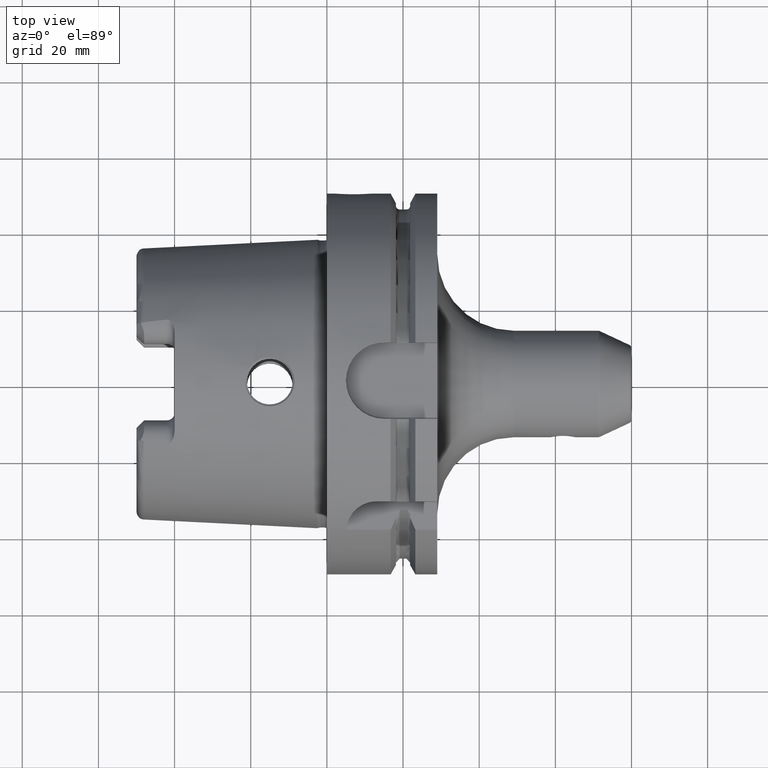
[diagram: clean part render]
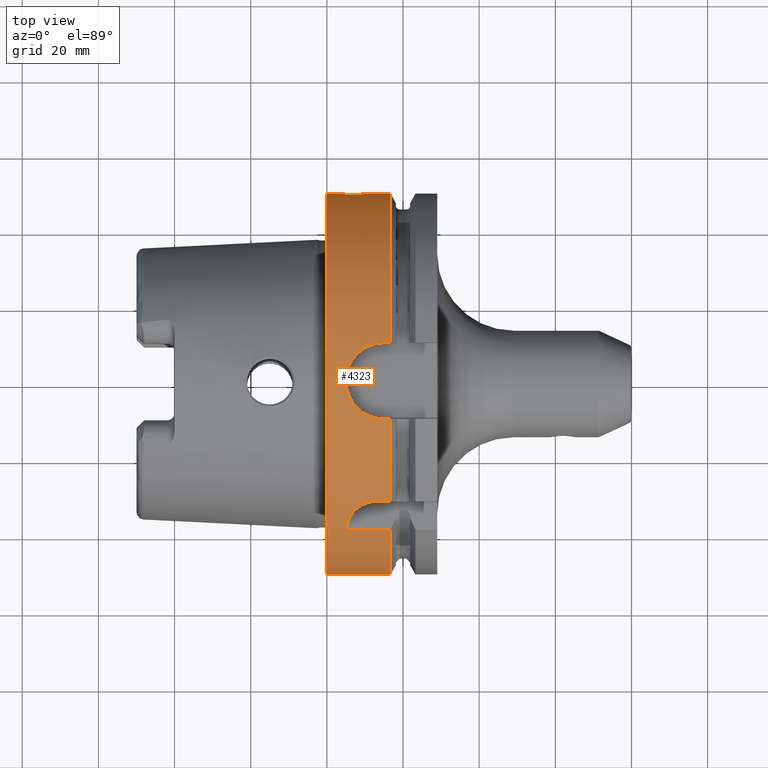
[diagram: same view with one face highlighted and labeled with its STEP entity id]
A machine part, top view. The second image highlights one B-rep face of the part: STEP entity #4323.
In plain terms, the highlighted cylindrical surface (partial cylindrical patch) has radius 50 mm, axis along (1, 0, 0).
Its self-contained STEP definition (entity closure, byte-faithful):
#905=CARTESIAN_POINT('',(2.842170943040E-14,0.E0,0.E0));
#906=DIRECTION('',(1.E0,0.E0,0.E0));
#907=DIRECTION('',(0.E0,1.E0,0.E0));
#908=AXIS2_PLACEMENT_3D('',#905,#906,#907);
#925=CARTESIAN_POINT('',(5.034393888950E0,-3.850181847445E1,3.190000347118E1));
#926=CARTESIAN_POINT('',(5.079891755474E0,-3.814002188801E1,3.233667512029E1));
#927=CARTESIAN_POINT('',(5.218329285408E0,-3.743922777977E1,3.315231445278E1));
#928=CARTESIAN_POINT('',(5.545025708318E0,-3.647125042213E1,3.421187940288E1));
#929=CARTESIAN_POINT('',(5.969873794679E0,-3.559132477300E1,3.512447198383E1));
#930=CARTESIAN_POINT('',(6.478841868959E0,-3.479567751309E1,3.591138918550E1));
#931=CARTESIAN_POINT('',(7.061997175570E0,-3.408286391435E1,3.658733903489E1));
#932=CARTESIAN_POINT('',(7.697839687567E0,-3.346338412595E1,3.715374880049E1));
#933=CARTESIAN_POINT('',(8.381874075979E0,-3.292924018453E1,3.762718451074E1));
#934=CARTESIAN_POINT('',(9.095903473760E0,-3.248519599011E1,3.801058190610E1));
#935=CARTESIAN_POINT('',(9.840571347793E0,-3.212294289263E1,3.831676553498E1));
#936=CARTESIAN_POINT('',(1.060785525677E1,-3.184309025826E1,3.854930237826E1));
#937=CARTESIAN_POINT('',(1.138395211823E1,-3.164555415930E1,3.871139633355E1));
#938=CARTESIAN_POINT('',(1.217785855032E1,-3.152615219491E1,3.880856443554E1));
#939=CARTESIAN_POINT('',(1.270660116276E1,-3.15E1,3.882975663071E1));
#940=CARTESIAN_POINT('',(1.297187392185E1,-3.15E1,3.882975663071E1));
#942=DIRECTION('',(1.E0,2.305590875709E-8,-2.614341417609E-7));
#943=VECTOR('',#942,1.135091581542E1);
#944=CARTESIAN_POINT('',(5.401488920390E0,-3.882975689241E1,3.150000296752E1));
#945=LINE('',#944,#943);
#946=CARTESIAN_POINT('',(1.675240473581E1,0.E0,0.E0));
#947=DIRECTION('',(1.E0,0.E0,0.E0));
#948=DIRECTION('',(0.E0,-7.765951326142E-1,6.3E-1));
#949=AXIS2_PLACEMENT_3D('',#946,#947,#948);
#951=CARTESIAN_POINT('',(7.E0,4.974937185533E1,5.E0));
#952=CARTESIAN_POINT('',(6.785364578340E0,4.974937185533E1,5.E0));
#953=CARTESIAN_POINT('',(6.359607340530E0,4.975213075443E1,4.972665280491E0));
#954=CARTESIAN_POINT('',(5.725357459552E0,4.976438838992E1,4.849158480725E0));
#955=CARTESIAN_POINT('',(5.113958013306E0,4.978392026964E1,4.645512560233E0));
#956=CARTESIAN_POINT('',(4.535077541309E0,4.980935895517E1,4.365866138933E0));
#957=CARTESIAN_POINT('',(3.998485821487E0,4.983894783875E1,4.016082413467E0));
#958=CARTESIAN_POINT('',(3.504530431057E0,4.987129108184E1,3.594931045829E0));
#959=CARTESIAN_POINT('',(3.066682244819E0,4.990407628879E1,3.109802764806E0));
#960=CARTESIAN_POINT('',(2.695651539586E0,4.993485829881E1,2.572139623468E0));
#961=CARTESIAN_POINT('',(2.393198845038E0,4.996198022395E1,1.981838247215E0));
#962=CARTESIAN_POINT('',(2.166686854341E0,4.998349951273E1,1.340192769770E0));
#963=CARTESIAN_POINT('',(2.029544312946E0,4.999703190573E1,6.687853592225E-1));
#964=CARTESIAN_POINT('',(2.E0,5.E1,2.237301364995E-1));
#965=CARTESIAN_POINT('',(2.E0,5.E1,1.118758432857E-13));
#967=CARTESIAN_POINT('',(1.2E1,5.E1,2.305800131571E-14));
#968=CARTESIAN_POINT('',(1.2E1,5.E1,2.234527780907E-1));
#969=CARTESIAN_POINT('',(1.197052807599E1,4.999703916351E1,6.681024142336E-1));
#970=CARTESIAN_POINT('',(1.183356143039E1,4.998352382834E1,1.339284243816E0));
#971=CARTESIAN_POINT('',(1.160708565240E1,4.996200585291E1,1.981281899248E0));
#972=CARTESIAN_POINT('',(1.130414801973E1,4.993484051248E1,2.572512330684E0));
#973=CARTESIAN_POINT('',(1.093318829236E1,4.990406620569E1,3.109951320064E0));
#974=CARTESIAN_POINT('',(1.049521862494E1,4.987127302507E1,3.595189934525E0));
#975=CARTESIAN_POINT('',(1.000107745430E1,4.983892040913E1,4.016425163841E0));
#976=CARTESIAN_POINT('',(9.464199852903E0,4.980932329520E1,4.366270410557E0));
#977=CARTESIAN_POINT('',(8.885628626441E0,4.978390578735E1,4.645663836710E0));
#978=CARTESIAN_POINT('',(8.274345528449E0,4.976438101637E1,4.849234034634E0));
#979=CARTESIAN_POINT('',(7.640198771794E0,4.975212889093E1,4.972683527345E0));
#980=CARTESIAN_POINT('',(7.214565181989E0,4.974937185533E1,5.E0));
#981=CARTESIAN_POINT('',(7.E0,4.974937185533E1,5.E0));
#983=CARTESIAN_POINT('',(1.675240473581E1,0.E0,0.E0));
#984=DIRECTION('',(1.E0,0.E0,0.E0));
#985=DIRECTION('',(0.E0,1.E0,0.E0));
#986=AXIS2_PLACEMENT_3D('',#983,#984,#985);
#988=DIRECTION('',(1.E0,0.E0,0.E0));
#989=VECTOR('',#988,1.752404735808E0);
#990=CARTESIAN_POINT('',(1.5E1,1.E1,4.898979485566E1));
#991=LINE('',#990,#989);
#992=CARTESIAN_POINT('',(1.5E1,-1.E1,4.898979485566E1));
#993=CARTESIAN_POINT('',(1.461433853181E1,-1.E1,4.898979485566E1));
#994=CARTESIAN_POINT('',(1.384792823766E1,-9.955829030331E0,4.899884397842E1));
#995=CARTESIAN_POINT('',(1.270318782193E1,-9.755652716258E0,4.903927543622E1));
#996=CARTESIAN_POINT('',(1.159291112533E1,-9.425637273974E0,4.910408175239E1));
#997=CARTESIAN_POINT('',(1.051814151292E1,-8.964783602916E0,4.919070538252E1));
#998=CARTESIAN_POINT('',(9.506583198542E0,-8.383297550249E0,4.929362650512E1));
#999=CARTESIAN_POINT('',(8.561762080581E0,-7.681706500136E0,4.940835010068E1));
#1000=CARTESIAN_POINT('',(7.709606997002E0,-6.878114233116E0,4.952715502508E1));
#1001=CARTESIAN_POINT('',(6.953904677377E0,-5.976638776685E0,4.964454319775E1));
#1002=CARTESIAN_POINT('',(6.311925981810E0,-4.997170223059E0,4.975312843034E1));
#1003=CARTESIAN_POINT('',(5.789768440832E0,-3.952954652492E0,4.984737665205E1));
#1004=CARTESIAN_POINT('',(5.393269728393E0,-2.856412480124E0,4.992248960941E1));
#1005=CARTESIAN_POINT('',(5.128098629202E0,-1.730127295259E0,4.997441976121E1));
#1006=CARTESIAN_POINT('',(4.994342500169E0,-5.763771997261E-1,
5.000112679140E1));
#1007=CARTESIAN_POINT('',(4.994338239448E0,5.763207127621E-1,5.000112763866E1));
#1008=CARTESIAN_POINT('',(5.128092900613E0,1.730089190041E0,4.997442091565E1));
#1009=CARTESIAN_POINT('',(5.393247424547E0,2.856338942221E0,4.992249389752E1));
#1010=CARTESIAN_POINT('',(5.789756364753E0,3.952927169483E0,4.984737889404E1));
#1011=CARTESIAN_POINT('',(6.311888292065E0,4.997101378585E0,4.975313514011E1));
#1012=CARTESIAN_POINT('',(6.953872081190E0,5.976601905871E0,4.964454816682E1));
#1013=CARTESIAN_POINT('',(7.709631499119E0,6.878137309644E0,4.952715165427E1));
#1014=CARTESIAN_POINT('',(8.561704241599E0,7.681659093425E0,4.940835750252E1));
#1015=CARTESIAN_POINT('',(9.506643668842E0,8.383341435183E0,4.929361929735E1));
#1016=CARTESIAN_POINT('',(1.051816652897E1,8.964792511055E0,4.919070356194E1));
#1017=CARTESIAN_POINT('',(1.159290882117E1,9.425636853385E0,4.910408186055E1));
#1018=CARTESIAN_POINT('',(1.270318273238E1,9.755649364006E0,4.903927608242E1));
#1019=CARTESIAN_POINT('',(1.384784959592E1,9.955819016163E0,4.899884601793E1));
#1020=CARTESIAN_POINT('',(1.461430453034E1,1.E1,4.898979485566E1));
#1021=CARTESIAN_POINT('',(1.5E1,1.E1,4.898979485566E1));
#1023=DIRECTION('',(1.E0,0.E0,0.E0));
#1024=VECTOR('',#1023,1.752404735808E0);
#1025=CARTESIAN_POINT('',(1.5E1,-1.E1,4.898979485566E1));
#1026=LINE('',#1025,#1024);
#1027=CARTESIAN_POINT('',(1.675240473581E1,0.E0,0.E0));
#1028=DIRECTION('',(1.E0,0.E0,0.E0));
#1029=DIRECTION('',(0.E0,-2.E-1,9.797958971133E-1));
#1030=AXIS2_PLACEMENT_3D('',#1027,#1028,#1029);
#1032=DIRECTION('',(1.E0,0.E0,0.E0));
#1033=VECTOR('',#1032,3.780530813955E0);
#1034=CARTESIAN_POINT('',(1.297187392185E1,-3.15E1,3.882975663071E1));
#1035=LINE('',#1034,#1033);
#1045=CARTESIAN_POINT('',(5.401488920390E0,-3.882975689241E1,3.150000296752E1));
#1046=CARTESIAN_POINT('',(5.341006979730E0,-3.877711696661E1,3.156489171381E1));
#1047=CARTESIAN_POINT('',(5.219329419165E0,-3.866984280926E1,3.169645588820E1));
#1048=CARTESIAN_POINT('',(5.096245168651E0,-3.855852627856E1,3.183155978966E1));
#1049=CARTESIAN_POINT('',(5.034393888950E0,-3.850181847445E1,3.190000347118E1));
#1158=DIRECTION('',(-1.E0,0.E0,0.E0));
#1159=VECTOR('',#1158,4.752404735808E0);
#1160=CARTESIAN_POINT('',(1.675240473581E1,5.E1,0.E0));
#1161=LINE('',#1160,#1159);
#1194=DIRECTION('',(-1.E0,0.E0,-5.389684364428E-14));
#1195=VECTOR('',#1194,2.E0);
#1196=CARTESIAN_POINT('',(2.E0,5.E1,1.118758432857E-13));
#1197=LINE('',#1196,#1195);
#1198=DIRECTION('',(-1.E0,0.E0,0.E0));
#1199=VECTOR('',#1198,1.675240473581E1);
#1200=CARTESIAN_POINT('',(1.675240473581E1,-5.E1,-1.020538999289E-14));
#1201=LINE('',#1200,#1199);
#1317=CARTESIAN_POINT('',(1.675240473581E1,-3.882975663071E1,3.15E1));
#2839=CARTESIAN_POINT('',(2.842170943040E-14,5.E1,0.E0));
#2840=CARTESIAN_POINT('',(2.842170943040E-14,-5.E1,0.E0));
#2841=VERTEX_POINT('',#2839);
#2842=VERTEX_POINT('',#2840);
#3058=CARTESIAN_POINT('',(1.675240473581E1,-5.E1,-1.020538999289E-14));
#3059=VERTEX_POINT('',#3058);
#3084=CARTESIAN_POINT('',(7.E0,4.974937185533E1,5.E0));
#3085=VERTEX_POINT('',#3084);
#3088=VERTEX_POINT('',#965);
#3089=VERTEX_POINT('',#967);
#3090=CARTESIAN_POINT('',(1.675240473581E1,5.E1,0.E0));
#3091=VERTEX_POINT('',#3090);
#3108=VERTEX_POINT('',#992);
#3109=VERTEX_POINT('',#1021);
#3110=CARTESIAN_POINT('',(1.675240473581E1,-1.E1,4.898979485566E1));
#3111=VERTEX_POINT('',#3110);
#3112=CARTESIAN_POINT('',(1.675240473581E1,1.E1,4.898979485566E1));
#3113=VERTEX_POINT('',#3112);
#3192=VERTEX_POINT('',#1045);
#3193=VERTEX_POINT('',#1049);
#3198=CARTESIAN_POINT('',(1.297187392185E1,-3.15E1,3.882975663071E1));
#3199=CARTESIAN_POINT('',(1.675240473581E1,-3.15E1,3.882975663071E1));
#3200=VERTEX_POINT('',#3198);
#3201=VERTEX_POINT('',#3199);
#3230=VERTEX_POINT('',#1317);
#4285=CARTESIAN_POINT('',(-5.395E1,0.E0,0.E0));
#4286=DIRECTION('',(1.E0,0.E0,0.E0));
#4287=DIRECTION('',(0.E0,-1.E0,0.E0));
#4288=AXIS2_PLACEMENT_3D('',#4285,#4286,#4287);
#4289=CYLINDRICAL_SURFACE('',#4288,5.E1);
#4291=ORIENTED_EDGE('',*,*,#4290,.F.);
#4293=ORIENTED_EDGE('',*,*,#4292,.F.);
#4295=ORIENTED_EDGE('',*,*,#4294,.T.);
#4297=ORIENTED_EDGE('',*,*,#4296,.T.);
#4299=ORIENTED_EDGE('',*,*,#4298,.T.);
#4300=ORIENTED_EDGE('',*,*,#4274,.F.);
#4302=ORIENTED_EDGE('',*,*,#4301,.F.);
#4304=ORIENTED_EDGE('',*,*,#4303,.F.);
#4306=ORIENTED_EDGE('',*,*,#4305,.F.);
#4308=ORIENTED_EDGE('',*,*,#4307,.F.);
#4310=ORIENTED_EDGE('',*,*,#4309,.T.);
#4312=ORIENTED_EDGE('',*,*,#4311,.F.);
#4314=ORIENTED_EDGE('',*,*,#4313,.F.);
#4316=ORIENTED_EDGE('',*,*,#4315,.T.);
#4318=ORIENTED_EDGE('',*,*,#4317,.T.);
#4320=ORIENTED_EDGE('',*,*,#4319,.F.);
#4321=EDGE_LOOP('',(#4291,#4293,#4295,#4297,#4299,#4300,#4302,#4304,#4306,#4308,
#4310,#4312,#4314,#4316,#4318,#4320));
#4322=FACE_OUTER_BOUND('',#4321,.F.);
#4323=ADVANCED_FACE('',(#4322),#4289,.T.);
#909=CIRCLE('',#908,5.E1);
#941=B_SPLINE_CURVE_WITH_KNOTS('',3,(#925,#926,#927,#928,#929,#930,#931,#932,
#933,#934,#935,#936,#937,#938,#939,#940),.UNSPECIFIED.,.F.,.F.,(4,1,1,1,1,1,1,1,
1,1,1,1,1,4),(0.E0,7.692307692308E-2,1.538461538462E-1,2.307692307692E-1,
3.076923076923E-1,3.846153846154E-1,4.615384615385E-1,5.384615384615E-1,
6.153846153846E-1,6.923076923077E-1,7.692307692308E-1,8.461538461538E-1,
9.230769230769E-1,1.E0),.UNSPECIFIED.);
#950=CIRCLE('',#949,5.E1);
#966=B_SPLINE_CURVE_WITH_KNOTS('',3,(#951,#952,#953,#954,#955,#956,#957,#958,
#959,#960,#961,#962,#963,#964,#965),.UNSPECIFIED.,.F.,.F.,(4,1,1,1,1,1,1,1,1,1,
1,1,4),(0.E0,8.333333333333E-2,1.666666666667E-1,2.5E-1,3.333333333333E-1,
4.166666666667E-1,5.E-1,5.833333333333E-1,6.666666666667E-1,7.5E-1,
8.333333333333E-1,9.166666666667E-1,1.E0),.UNSPECIFIED.);
#982=B_SPLINE_CURVE_WITH_KNOTS('',3,(#967,#968,#969,#970,#971,#972,#973,#974,
#975,#976,#977,#978,#979,#980,#981),.UNSPECIFIED.,.F.,.F.,(4,1,1,1,1,1,1,1,1,1,
1,1,4),(0.E0,8.333333333333E-2,1.666666666667E-1,2.5E-1,3.333333333333E-1,
4.166666666667E-1,5.E-1,5.833333333333E-1,6.666666666667E-1,7.5E-1,
8.333333333333E-1,9.166666666667E-1,1.E0),.UNSPECIFIED.);
#987=CIRCLE('',#986,5.E1);
#1022=B_SPLINE_CURVE_WITH_KNOTS('',3,(#992,#993,#994,#995,#996,#997,#998,#999,
#1000,#1001,#1002,#1003,#1004,#1005,#1006,#1007,#1008,#1009,#1010,#1011,#1012,
#1013,#1014,#1015,#1016,#1017,#1018,#1019,#1020,#1021),.UNSPECIFIED.,.F.,.F.,(4,
1,1,1,1,1,1,1,1,1,1,1,1,1,1,1,1,1,1,1,1,1,1,1,1,1,1,4),(0.E0,3.703703703704E-2,
7.407407407407E-2,1.111111111111E-1,1.481481481481E-1,1.851851851852E-1,
2.222222222222E-1,2.592592592593E-1,2.962962962963E-1,3.333333333333E-1,
3.703703703704E-1,4.074074074074E-1,4.444444444444E-1,4.814814814815E-1,
5.185185185185E-1,5.555555555556E-1,5.925925925926E-1,6.296296296296E-1,
6.666666666667E-1,7.037037037037E-1,7.407407407407E-1,7.777777777778E-1,
8.148148148148E-1,8.518518518519E-1,8.888888888889E-1,9.259259259259E-1,
9.629629629630E-1,1.E0),.UNSPECIFIED.);
#1031=CIRCLE('',#1030,5.E1);
#1050=B_SPLINE_CURVE_WITH_KNOTS('',3,(#1045,#1046,#1047,#1048,#1049),
.UNSPECIFIED.,.F.,.F.,(4,1,4),(0.E0,5.E-1,1.E0),.UNSPECIFIED.);
#4274=EDGE_CURVE('',#2841,#2842,#909,.T.);
#4290=EDGE_CURVE('',#3193,#3200,#941,.T.);
#4292=EDGE_CURVE('',#3192,#3193,#1050,.T.);
#4294=EDGE_CURVE('',#3192,#3230,#945,.T.);
#4296=EDGE_CURVE('',#3230,#3059,#950,.T.);
#4298=EDGE_CURVE('',#3059,#2842,#1201,.T.);
#4301=EDGE_CURVE('',#3088,#2841,#1197,.T.);
#4303=EDGE_CURVE('',#3085,#3088,#966,.T.);
#4305=EDGE_CURVE('',#3089,#3085,#982,.T.);
#4307=EDGE_CURVE('',#3091,#3089,#1161,.T.);
#4309=EDGE_CURVE('',#3091,#3113,#987,.T.);
#4311=EDGE_CURVE('',#3109,#3113,#991,.T.);
#4313=EDGE_CURVE('',#3108,#3109,#1022,.T.);
#4315=EDGE_CURVE('',#3108,#3111,#1026,.T.);
#4317=EDGE_CURVE('',#3111,#3201,#1031,.T.);
#4319=EDGE_CURVE('',#3200,#3201,#1035,.T.);